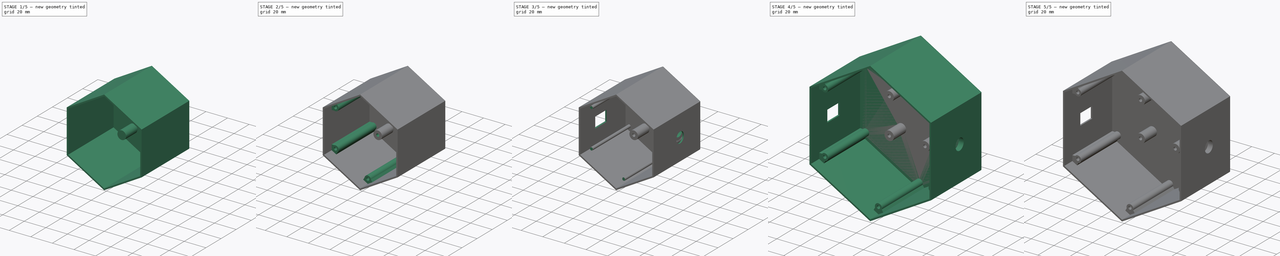
[diagram: build sequence overview — one tinted view per stage of 5, left to right]
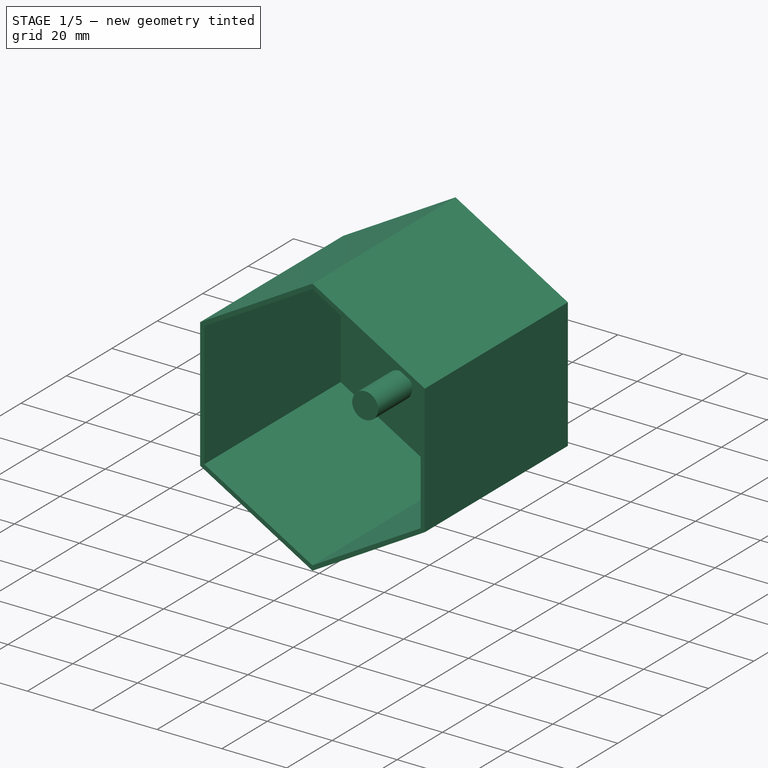
[diagram: stage 1 of 5 — iso view after this stage's code; geometry added in this stage tinted green]
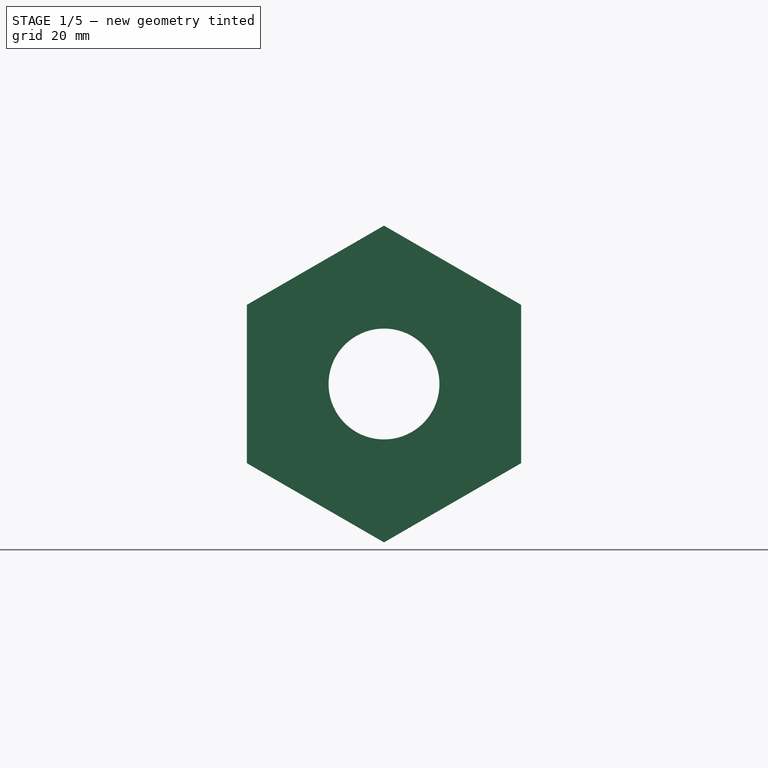
[diagram: stage 1 of 5 — front view after this stage's code; geometry added in this stage tinted green]
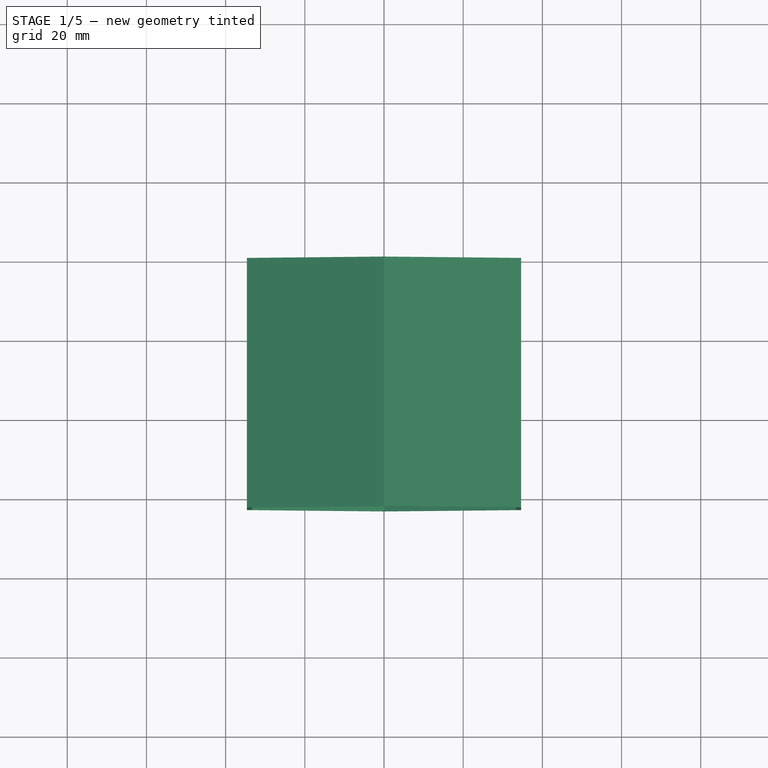
[diagram: stage 1 of 5 — top view after this stage's code; geometry added in this stage tinted green]
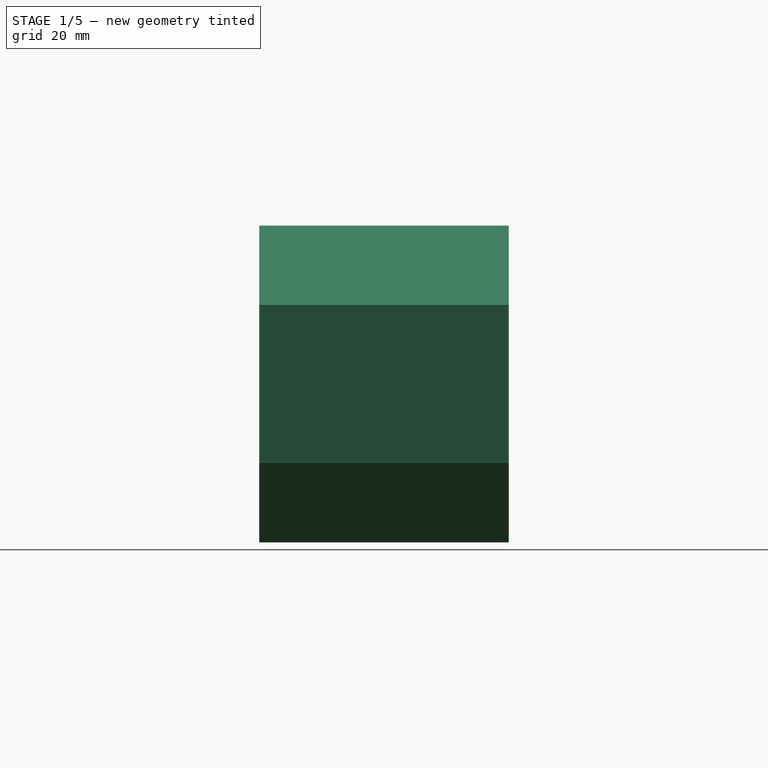
[diagram: stage 1 of 5 — right view after this stage's code; geometry added in this stage tinted green]
FCSTD DOCUMENT  (FreeCAD 0.19R)
Label: declic-joystick-box-v001
License: All rights reserved
LicenseURL: http://en.wikipedia.org/wiki/All_rights_reserved
objects: Sketcher::SketchObject×13, PartDesign::Pad×8, PartDesign::Pocket×5, PartDesign::PolarPattern×2, PartDesign::Chamfer×2, PartDesign::Body×2, App::Part×2, PartDesign::Fillet×1
note: 46 computed .brp shape members not serialized (recipe doc carries the construction recipe); baked Part::Feature solids carry a one-line shape summary decoded from their .brp

FEATURE [Sketcher::SketchObject] Sketch
  MapMode = 5
  Placement = pos=(0,0,0) rot=(1,0,0;1.5708rad)
  Support = -> [XZ_Plane001]
  sketch-geometry (7):
    g0: LineSegment StartX=0 StartY=40 StartZ=0 EndX=-34.641 EndY=20 EndZ=0
    g1: LineSegment StartX=-34.641 StartY=20 StartZ=0 EndX=-34.641 EndY=-20 EndZ=0
    g2: LineSegment StartX=-34.641 StartY=-20 StartZ=0 EndX=-7.1e-15 EndY=-40 EndZ=0
    g3: LineSegment StartX=-8.5e-15 StartY=-40 StartZ=0 EndX=34.641 EndY=-20 EndZ=0
    g4: LineSegment StartX=34.641 StartY=-20 StartZ=0 EndX=34.641 EndY=20 EndZ=0
    g5: LineSegment StartX=34.641 StartY=20 StartZ=0 EndX=0 EndY=40 EndZ=0
    g6: Circle [constr] CenterX=0 CenterY=0 CenterZ=0 NormalX=0 NormalY=0 NormalZ=1 AngleXU=0 Radius=40
  constraints (16):
    c: Coincident(g0,g1)
    c: Coincident(g1,g2)
    c: Coincident(g2,g3)
    c: Coincident(g3,g4)
    c: Coincident(g4,g5)
    c: Coincident(g5,g0)
    c: Equal(g0, g1-g5) x5
    c: PointOnObject(g0,g6)
    c: PointOnObject(g1,g6)
    c: PointOnObject(g2,g6)
    c: PointOnObject(g3,g6)
    c: PointOnObject(g4,g6)
    c: PointOnObject(g5,g6)
    c: Coincident(g6,g-1)
    c: PointOnObject(g5,g-2)
    c: Radius(g6) = 40
FEATURE [PartDesign::Pad] Pad
  Length = 3
  Length2 = 100
  Placement = pos=(0,0,0) rot=(1,0,0;1.5708rad)
  Profile = -> Sketch
  Type = 0
FEATURE [Sketcher::SketchObject] Sketch001
  MapMode = 5
  Placement = pos=(0,0,0) rot=(-1,0,0;1.5708rad)
  Support = -> [Pad]
  sketch-geometry (1):
    g0: Circle CenterX=0 CenterY=0 CenterZ=0 NormalX=0 NormalY=0 NormalZ=1 AngleXU=0 Radius=14
  constraints (2):
    c: Coincident(g0,g-1)
    c: Diameter(g0) = 28
FEATURE [PartDesign::Pocket] Pocket
  BaseFeature = -> Pad
  Length = 5
  Length2 = 100
  Placement = pos=(0,0,0) rot=(1,0,0;1.5708rad)
  Profile = -> Sketch001
  Type = 0
FEATURE [Sketcher::SketchObject] Sketch002
  ExternalGeometry = -> [Pocket]
  MapMode = 5
  Placement = pos=(0,-3,-7e-16) rot=(1,0,0;1.5708rad)
  Support = -> [Pocket]
  sketch-geometry (14):
    g0: LineSegment StartX=0 StartY=40 StartZ=0 EndX=-34.641 EndY=20 EndZ=0
    g1: LineSegment StartX=-34.641 StartY=20 StartZ=0 EndX=-34.641 EndY=-20 EndZ=0
    g2: LineSegment StartX=-34.641 StartY=-20 StartZ=0 EndX=7.1e-15 EndY=-40 EndZ=0
    g3: LineSegment StartX=5.3e-15 StartY=-40 StartZ=0 EndX=34.641 EndY=-20 EndZ=0
    g4: LineSegment StartX=34.641 StartY=-20 StartZ=0 EndX=34.641 EndY=20 EndZ=0
    g5: LineSegment StartX=34.641 StartY=20 StartZ=0 EndX=0 EndY=40 EndZ=0
    g6: Circle [constr] CenterX=0 CenterY=0 CenterZ=0 NormalX=0 NormalY=0 NormalZ=1 AngleXU=0 Radius=40
    g7: LineSegment StartX=0 StartY=38.5 StartZ=0 EndX=-33.342 EndY=19.25 EndZ=0
    g8: LineSegment StartX=-33.342 StartY=19.25 StartZ=0 EndX=-33.342 EndY=-19.25 EndZ=0
    g9: LineSegment StartX=-33.342 StartY=-19.25 StartZ=0 EndX=7.1e-15 EndY=-38.5 EndZ=0
    g10: LineSegment StartX=4.1e-15 StartY=-38.5 StartZ=0 EndX=33.342 EndY=-19.25 EndZ=0
    g11: LineSegment StartX=33.342 StartY=-19.25 StartZ=0 EndX=33.342 EndY=19.25 EndZ=0
    g12: LineSegment StartX=33.342 StartY=19.25 StartZ=0 EndX=0 EndY=38.5 EndZ=0
    g13: Circle [constr] CenterX=0 CenterY=0 CenterZ=0 NormalX=0 NormalY=0 NormalZ=1 AngleXU=0 Radius=38.5
  constraints (31):
    c: Coincident(g0,g1)
    c: Coincident(g1,g2)
    c: Coincident(g2,g3)
    c: Coincident(g3,g4)
    c: Coincident(g4,g5)
    c: Coincident(g5,g0)
    c: Equal(g0, g1-g5) x5
    c: PointOnObject(g0,g6)
    c: PointOnObject(g1,g6)
    c: PointOnObject(g2,g6)
    c: PointOnObject(g3,g6)
    c: PointOnObject(g4,g6)
    c: PointOnObject(g5,g6)
    c: Coincident(g6,g-1)
    c: Coincident(g5,g-3)
    c: Coincident(g7,g8)
    c: Coincident(g8,g9)
    c: Coincident(g9,g10)
    c: Coincident(g10,g11)
    c: Coincident(g11,g12)
    c: Coincident(g12,g7)
    c: Equal(g7, g8-g12) x5
    c: PointOnObject(g7,g13)
    c: PointOnObject(g8,g13)
    c: PointOnObject(g9,g13)
    c: PointOnObject(g10,g13)
    c: PointOnObject(g11,g13)
    c: PointOnObject(g12,g13)
    c: Coincident(g13,g-1)
    c: PointOnObject(g12,g-2)
    c: DistanceY(g7,g0) = 1.5
FEATURE [PartDesign::Pad] Pad001
  BaseFeature = -> Pocket
  Length = 60
  Length2 = 100
  Placement = pos=(0,0,0) rot=(1,0,0;1.5708rad)
  Profile = -> Sketch002
  Type = 0
FEATURE [Sketcher::SketchObject] Sketch003
  MapMode = 5
  Placement = pos=(0,-3,-7e-16) rot=(1,0,0;1.5708rad)
  Support = -> [Pad001]
  sketch-geometry (8):
    g0: LineSegment [constr] StartX=-15.25 StartY=15.25 StartZ=0 EndX=15.25 EndY=15.25 EndZ=0
    g1: LineSegment [constr] StartX=15.25 StartY=15.25 StartZ=0 EndX=15.25 EndY=-15.25 EndZ=0
    g2: LineSegment [constr] StartX=15.25 StartY=-15.25 StartZ=0 EndX=-15.25 EndY=-15.25 EndZ=0
    g3: LineSegment [constr] StartX=-15.25 StartY=-15.25 StartZ=0 EndX=-15.25 EndY=15.25 EndZ=0
    g4: Circle CenterX=-15.25 CenterY=15.25 CenterZ=0 NormalX=0 NormalY=0 NormalZ=1 AngleXU=0 Radius=4
    g5: Circle CenterX=15.25 CenterY=15.25 CenterZ=0 NormalX=0 NormalY=0 NormalZ=1 AngleXU=0 Radius=4
    g6: Circle CenterX=15.25 CenterY=-15.25 CenterZ=0 NormalX=0 NormalY=0 NormalZ=1 AngleXU=0 Radius=4
    g7: Circle CenterX=-15.25 CenterY=-15.25 CenterZ=0 NormalX=0 NormalY=0 NormalZ=1 AngleXU=0 Radius=4
  constraints (19):
    c: Coincident(g0,g1)
    c: Coincident(g1,g2)
    c: Coincident(g2,g3)
    c: Coincident(g3,g0)
    c: Horizontal(g0)
    c: Horizontal(g2)
    c: Vertical(g1)
    c: Vertical(g3)
    c: Symmetric(g0,g1,g-1)
    c: Distance(g0) = 30.5
    c: Distance(g1) = 30.5
    c: Coincident(g4,g0)
    c: Coincident(g5,g0)
    c: Coincident(g6,g1)
    c: Coincident(g7,g2)
    c: Equal(g4,g5)
    c: Equal(g4,g7)
    c: Equal(g4,g6)
    c: Radius(g4) = 4
FEATURE [PartDesign::Pad] Pad002
  BaseFeature = -> Pad001
  Length = 15
  Length2 = 100
  Placement = pos=(0,0,0) rot=(1,0,0;1.5708rad)
  Profile = -> Sketch003
  Type = 0
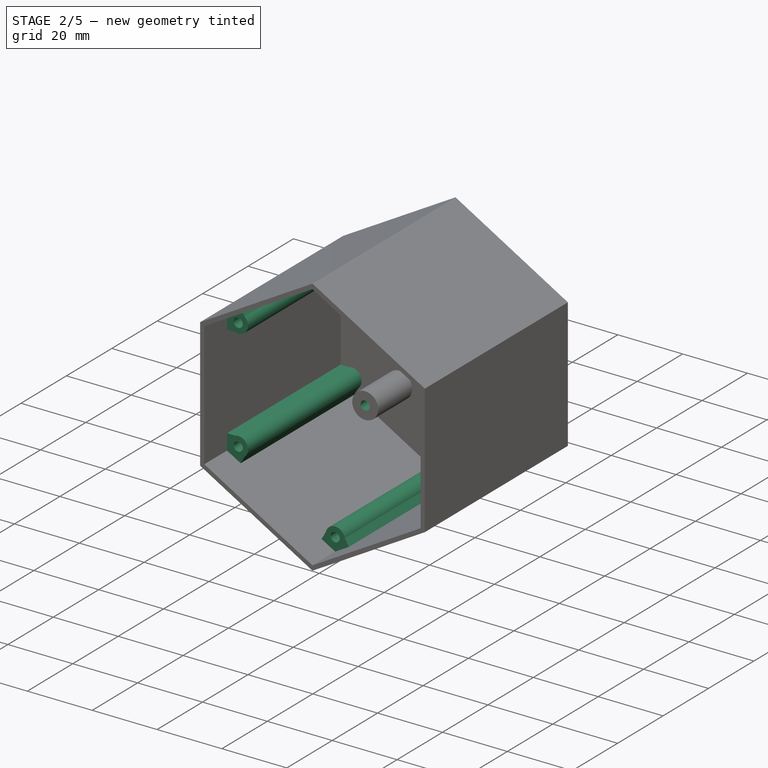
[diagram: stage 2 of 5 — iso view after this stage's code; geometry added in this stage tinted green]
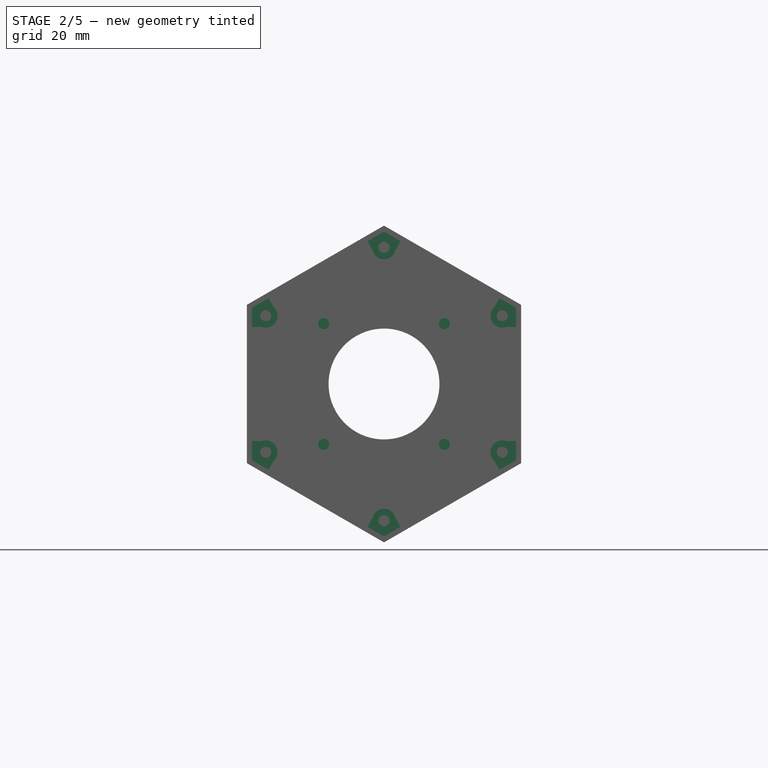
[diagram: stage 2 of 5 — front view after this stage's code; geometry added in this stage tinted green]
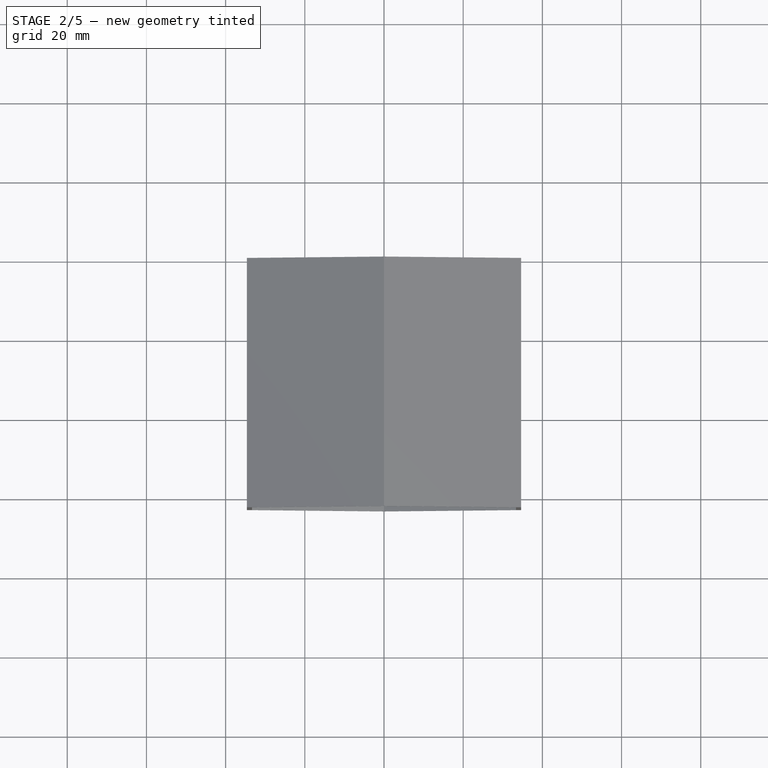
[diagram: stage 2 of 5 — top view after this stage's code; geometry added in this stage tinted green]
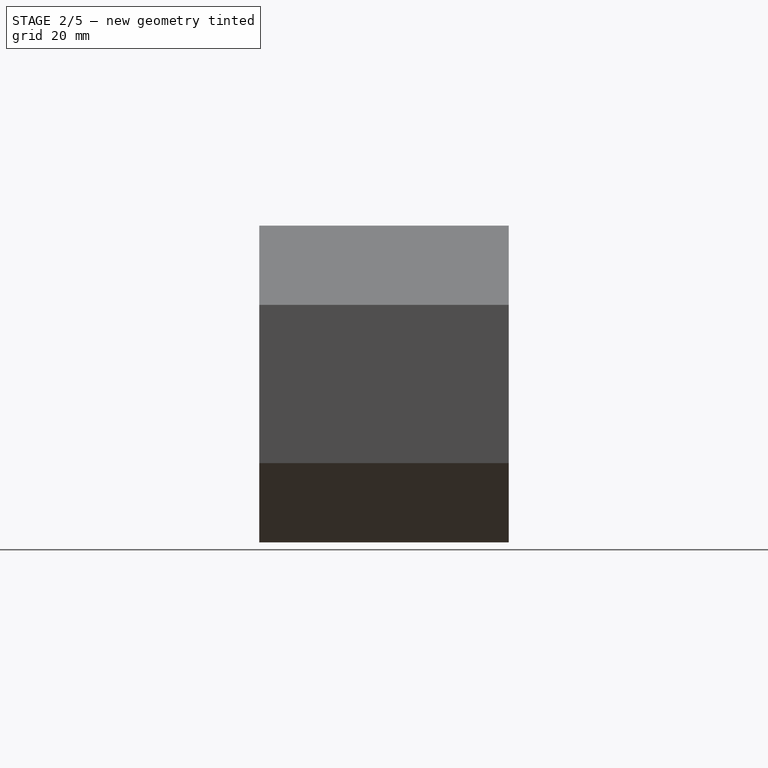
[diagram: stage 2 of 5 — right view after this stage's code; geometry added in this stage tinted green]
FEATURE [Sketcher::SketchObject] Sketch004
  ExternalGeometry = -> [Pad002]
  MapMode = 5
  Placement = pos=(-7e-16,-18,-3.5e-15) rot=(1,0,0;1.5708rad)
  Support = -> [Pad002]
  sketch-geometry (4):
    g0: Circle CenterX=-15.25 CenterY=-15.25 CenterZ=0 NormalX=0 NormalY=0 NormalZ=1 AngleXU=0 Radius=1.4
    g1: Circle CenterX=15.25 CenterY=-15.25 CenterZ=0 NormalX=0 NormalY=0 NormalZ=1 AngleXU=0 Radius=1.4
    g2: Circle CenterX=-15.25 CenterY=15.25 CenterZ=0 NormalX=0 NormalY=0 NormalZ=1 AngleXU=0 Radius=1.4
    g3: Circle CenterX=15.25 CenterY=15.25 CenterZ=0 NormalX=0 NormalY=0 NormalZ=1 AngleXU=0 Radius=1.4
  constraints (8):
    c: Coincident(g0,g-3)
    c: Coincident(g1,g-4)
    c: Coincident(g2,g-5)
    c: Coincident(g3,g-6)
    c: Equal(g0,g1)
    c: Equal(g0,g2)
    c: Equal(g0,g3)
    c: Radius(g0) = 1.4
FEATURE [PartDesign::Pocket] Pocket001
  BaseFeature = -> Pad002
  Length = 6
  Length2 = 100
  Placement = pos=(0,0,0) rot=(1,0,0;1.5708rad)
  Profile = -> Sketch004
  Type = 0
FEATURE [Sketcher::SketchObject] Sketch005
  ExternalGeometry = -> [Pocket001]
  MapMode = 5
  Placement = pos=(0,-3,-7e-16) rot=(1,0,0;1.5708rad)
  Support = -> [Pocket001]
  sketch-geometry (7):
    g0: Circle CenterX=0 CenterY=34.5 CenterZ=0 NormalX=0 NormalY=0 NormalZ=1 AngleXU=0 Radius=1.4
    g1: Circle [constr] CenterX=0 CenterY=34.5 CenterZ=0 NormalX=0 NormalY=0 NormalZ=1 AngleXU=0 Radius=3
    g2: LineSegment StartX=-4.19231 StartY=36.0796 StartZ=0 EndX=-2.94231 EndY=33.9145 EndZ=0
    g3: LineSegment StartX=4.19231 StartY=36.0796 StartZ=0 EndX=2.94231 EndY=33.9145 EndZ=0
    g4: LineSegment StartX=-4.19231 StartY=36.0796 StartZ=0 EndX=0 EndY=38.5 EndZ=0
    g5: LineSegment StartX=0 StartY=38.5 StartZ=0 EndX=4.19231 EndY=36.0796 EndZ=0
    g6: ArcOfCircle CenterX=0 CenterY=34.5 CenterZ=0 NormalX=0 NormalY=0 NormalZ=1 AngleXU=0 Radius=3 StartAngle=3.33802 EndAngle=6.08676
  constraints (19):
    c: PointOnObject(g0,g-2)
    c: Radius(g0) = 1.4
    c: Coincident(g1,g0)
    c: Distance(g0,g-4) = 4
    c: PointOnObject(g2,g-3)
    c: PointOnObject(g2,g1)
    c: PointOnObject(g3,g-4)
    c: Perpendicular(g-3,g2)
    c: Perpendicular(g-4,g3)
    c: Coincident(g2,g4)
    c: Coincident(g4,g-4)
    c: Coincident(g4,g5)
    c: Coincident(g5,g3)
    c: Equal(g2,g3)
    c: Distance(g3) = 2.5
    c: Coincident(g6,g0)
    c: Coincident(g6,g2)
    c: Coincident(g6,g3)
    c: Radius(g1) = 3
FEATURE [PartDesign::Pad] Pad003
  BaseFeature = -> Pocket001
  Length = 50
  Length2 = 100
  Placement = pos=(0,0,0) rot=(1,0,0;1.5708rad)
  Profile = -> Sketch005
  Type = 0
FEATURE [PartDesign::PolarPattern] PolarPattern
  Angle = 360
  Axis = -> Y_Axis001
  BaseFeature = -> Pad003
  Occurrences = 6
  Originals = -> [Pad003]
  Placement = pos=(0,0,0) rot=(1,0,0;1.5708rad)
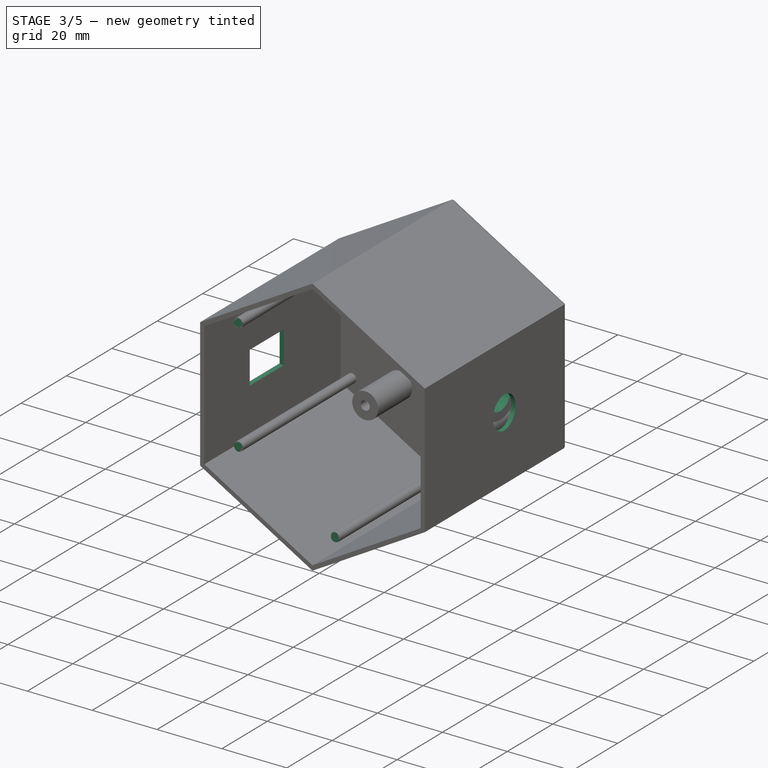
[diagram: stage 3 of 5 — iso view after this stage's code; geometry added in this stage tinted green]
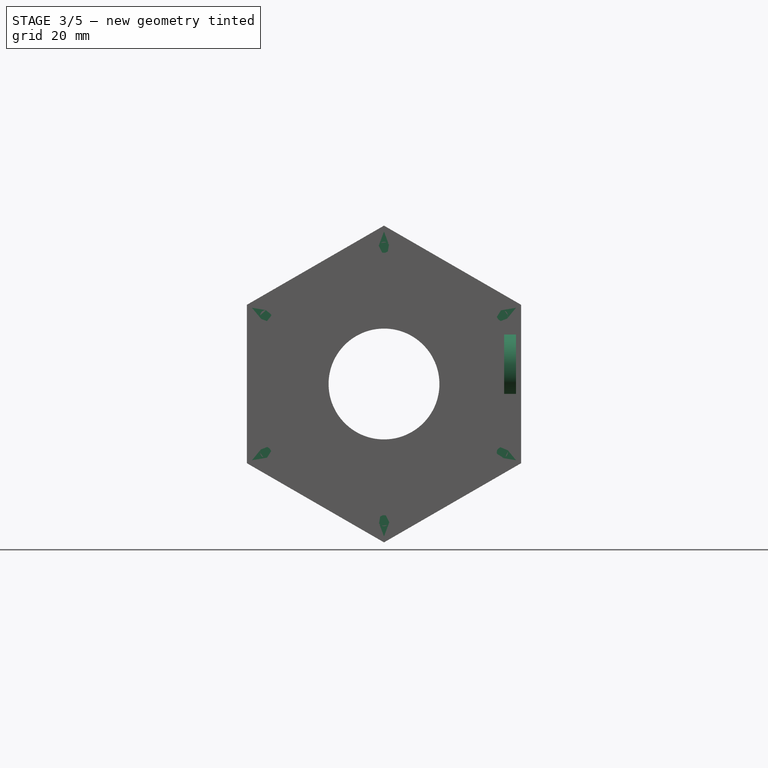
[diagram: stage 3 of 5 — front view after this stage's code; geometry added in this stage tinted green]
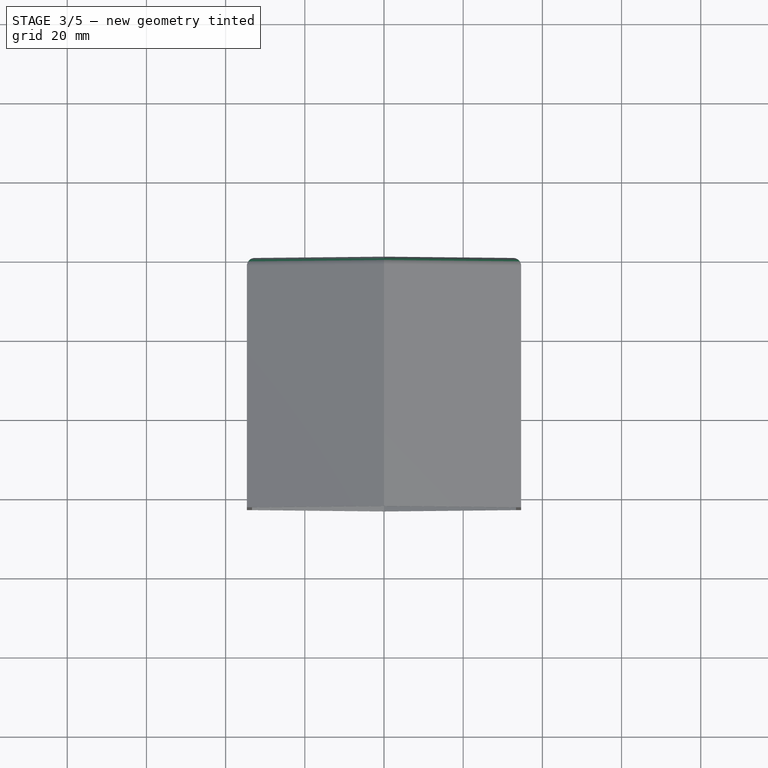
[diagram: stage 3 of 5 — top view after this stage's code; geometry added in this stage tinted green]
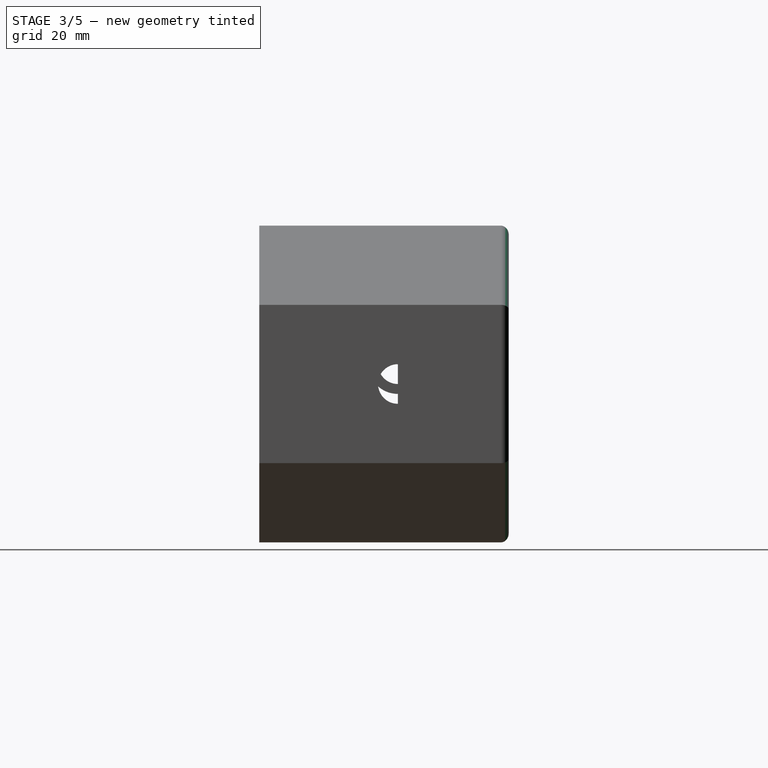
[diagram: stage 3 of 5 — right view after this stage's code; geometry added in this stage tinted green]
FEATURE [PartDesign::Fillet] Fillet
  Base = -> PolarPattern [Face4]
  BaseFeature = -> PolarPattern
  Placement = pos=(0,0,0) rot=(1,0,0;1.5708rad)
  Radius = 2
FEATURE [PartDesign::Body] Body001  label="declic-joystick-bottom-v001_body"
  Group = -> [Sketch006,Pad004,Sketch007,Pocket002,PolarPattern001,Chamfer,Sketch008,Pad005,Sketch009,Pad006]
  Origin = -> Origin003
  Tip = -> Pad006
FEATURE [App::Part] Part001  label="declic-joystick-bottom-v001"
  Group = -> [Body001]
  Origin = -> Origin002
  Placement = pos=(0,-120.2,0) rot=(0,0,1;0rad)
FEATURE [Sketcher::SketchObject] Sketch010
  ExternalGeometry = -> [Fillet]
  MapMode = 5
  Placement = pos=(-34.641,0,-6.2e-15) rot=(0.707107,0,-0.707107;3.14159rad)
  Support = -> [Fillet]
  sketch-geometry (4):
    g0: LineSegment StartX=-5 StartY=43 StartZ=0 EndX=5 EndY=43 EndZ=0
    g1: LineSegment StartX=5 StartY=28 StartZ=0 EndX=-5 EndY=28 EndZ=0
    g2: LineSegment StartX=-5 StartY=28 StartZ=0 EndX=-5 EndY=43 EndZ=0
    g3: LineSegment StartX=5 StartY=28 StartZ=0 EndX=5 EndY=43 EndZ=0
  constraints (11):
    c: Coincident(g1,g2)
    c: Coincident(g2,g0)
    c: Horizontal(g1)
    c: Vertical(g2)
    c: Symmetric(g0,g0,g-2)
    c: Distance(g1) = 10
    c: Coincident(g3,g1)
    c: Coincident(g3,g0)
    c: Vertical(g3)
    c: Distance(g0,g-3) = 20
    c: Distance(g2) = 15
FEATURE [PartDesign::Pocket] Pocket003
  BaseFeature = -> Fillet
  Length = 5
  Length2 = 100
  Placement = pos=(0,0,0) rot=(1,0,0;1.5708rad)
  Profile = -> Sketch010
  Type = 0
FEATURE [Sketcher::SketchObject] Sketch011
  ExternalGeometry = -> [Pocket003]
  MapMode = 5
  Placement = pos=(34.641,0,0) rot=(0.707107,0,0.707107;3.14159rad)
  Support = -> [Pocket003]
  sketch-geometry (1):
    g0: Circle CenterX=0 CenterY=28 CenterZ=0 NormalX=0 NormalY=0 NormalZ=1 AngleXU=0 Radius=5
  constraints (3):
    c: PointOnObject(g0,g-2)
    c: Diameter(g0) = 10
    c: Distance(g0,g-3) = 35
FEATURE [PartDesign::Pocket] Pocket004
  BaseFeature = -> Pocket003
  Length = 5
  Length2 = 100
  Placement = pos=(0,0,0) rot=(1,0,0;1.5708rad)
  Profile = -> Sketch011
  Type = 0
FEATURE [Sketcher::SketchObject] Sketch012
  ExternalGeometry = -> [Pocket004]
  MapMode = 5
  Placement = pos=(33.342,0,6.2e-15) rot=(0.707107,0,-0.707107;3.14159rad)
  Support = -> [Pocket004]
  sketch-geometry (2):
    g0: Circle CenterX=-5 CenterY=28 CenterZ=0 NormalX=0 NormalY=0 NormalZ=1 AngleXU=0 Radius=5
    g1: Circle CenterX=-5 CenterY=28 CenterZ=0 NormalX=0 NormalY=0 NormalZ=1 AngleXU=0 Radius=7.5
  constraints (4):
    c: Coincident(g0,g-3)
    c: Tangent(g0,g-3)
    c: Coincident(g1,g0)
    c: Diameter(g1) = 15
FEATURE [PartDesign::Pad] Pad007
  BaseFeature = -> Pocket004
  Length = 3
  Length2 = 100
  Placement = pos=(0,0,0) rot=(1,0,0;1.5708rad)
  Profile = -> Sketch012
  Type = 0
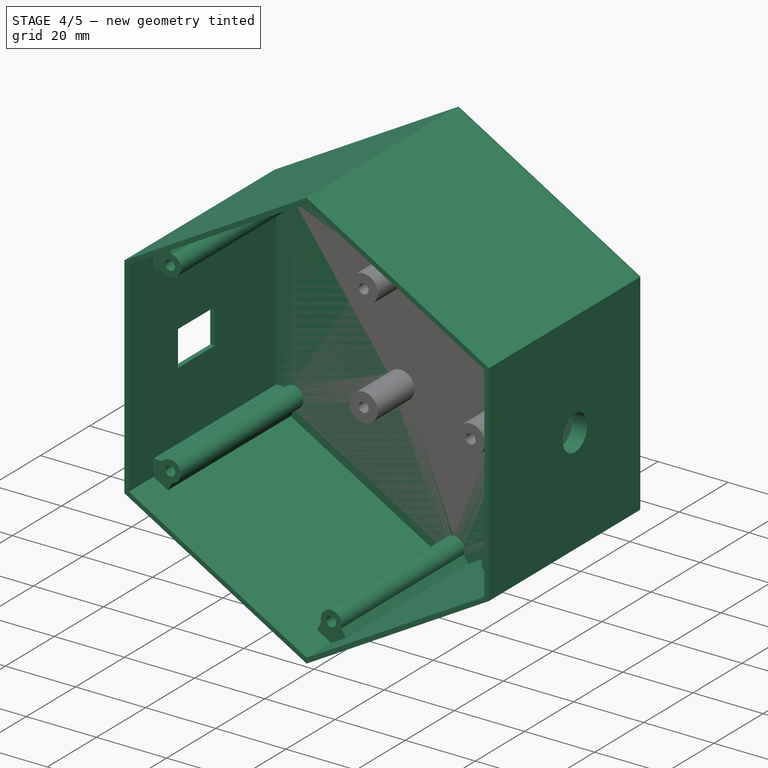
[diagram: stage 4 of 5 — iso view after this stage's code; geometry added in this stage tinted green]
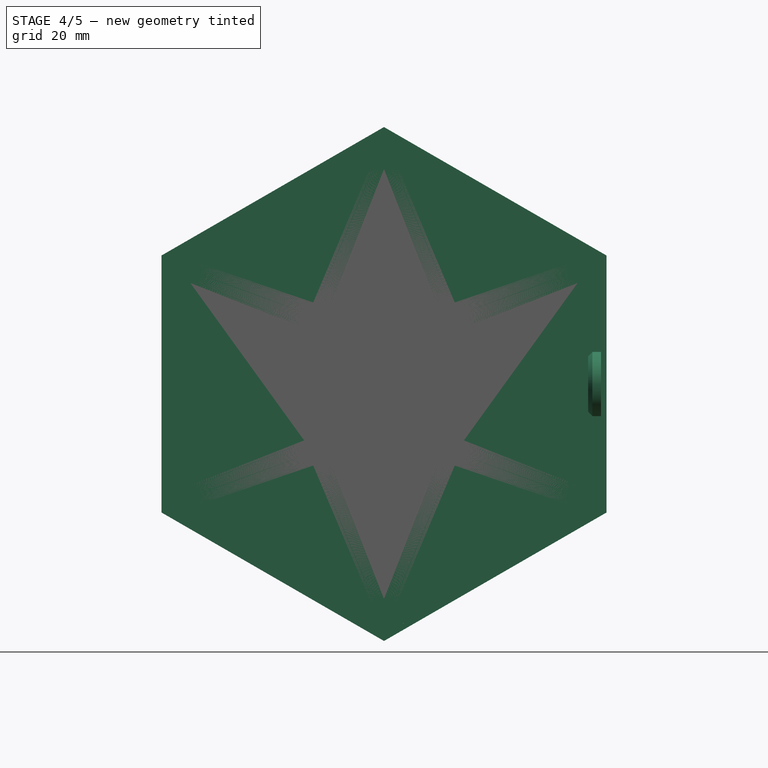
[diagram: stage 4 of 5 — front view after this stage's code; geometry added in this stage tinted green]
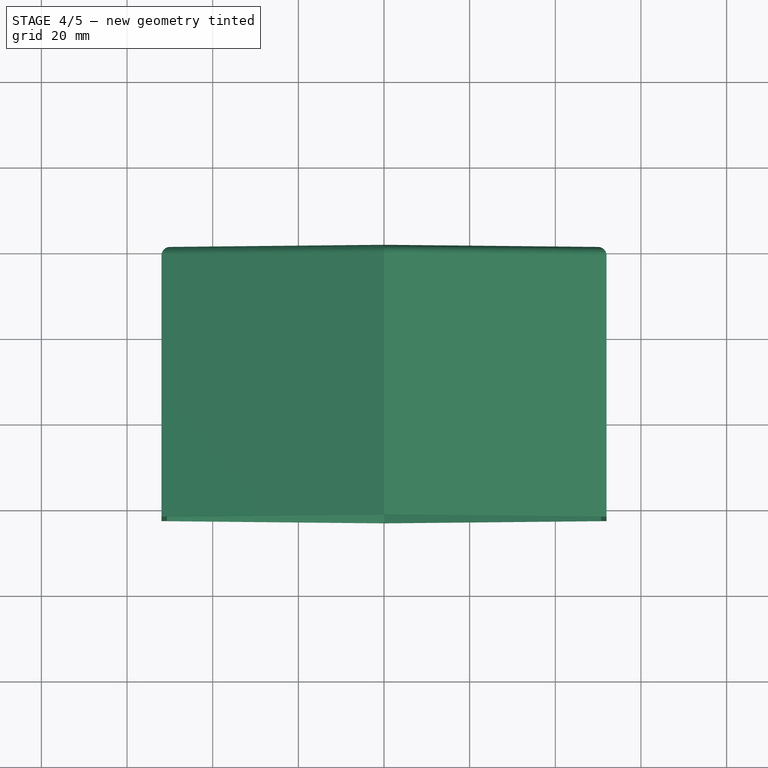
[diagram: stage 4 of 5 — top view after this stage's code; geometry added in this stage tinted green]
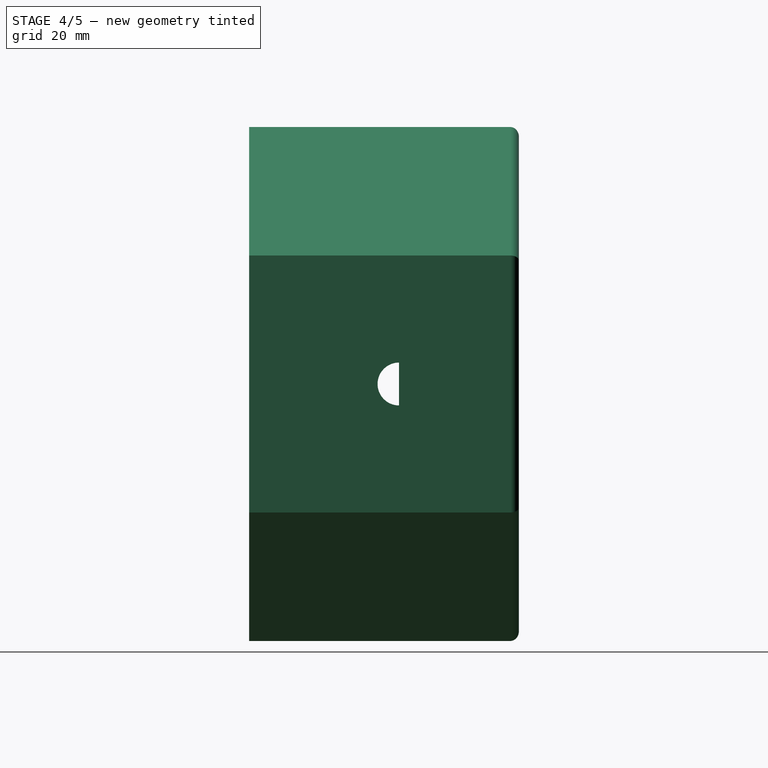
[diagram: stage 4 of 5 — right view after this stage's code; geometry added in this stage tinted green]
FEATURE [Sketcher::SketchObject] Sketch006
  MapMode = 5
  Placement = pos=(0,0,0) rot=(1,0,0;1.5708rad)
  Support = -> [XZ_Plane003]
  sketch-geometry (7):
    g0: LineSegment StartX=0 StartY=56 StartZ=0 EndX=-48.4974 EndY=28 EndZ=0
    g1: LineSegment StartX=-48.4974 StartY=28 StartZ=0 EndX=-48.4974 EndY=-28 EndZ=0
    g2: LineSegment StartX=-48.4974 StartY=-28 StartZ=0 EndX=0 EndY=-56 EndZ=0
    g3: LineSegment StartX=2.1e-15 StartY=-56 StartZ=0 EndX=48.4974 EndY=-28 EndZ=0
    g4: LineSegment StartX=48.4974 StartY=-28 StartZ=0 EndX=48.4974 EndY=28 EndZ=0
    g5: LineSegment StartX=48.4974 StartY=28 StartZ=0 EndX=0 EndY=56 EndZ=0
    g6: Circle [constr] CenterX=0 CenterY=0 CenterZ=0 NormalX=0 NormalY=0 NormalZ=1 AngleXU=0 Radius=56
  constraints (16):
    c: Coincident(g0,g1)
    c: Coincident(g1,g2)
    c: Coincident(g2,g3)
    c: Coincident(g3,g4)
    c: Coincident(g4,g5)
    c: Coincident(g5,g0)
    c: Equal(g0, g1-g5) x5
    c: PointOnObject(g0,g6)
    c: PointOnObject(g1,g6)
    c: PointOnObject(g2,g6)
    c: PointOnObject(g3,g6)
    c: PointOnObject(g4,g6)
    c: PointOnObject(g5,g6)
    c: Coincident(g6,g-1)
    c: PointOnObject(g5,g-2)
    c: Radius(g6) = 56
FEATURE [PartDesign::Pad] Pad004
  Length = 3
  Length2 = 100
  Placement = pos=(0,0,0) rot=(1,0,0;1.5708rad)
  Profile = -> Sketch006
  Type = 0
FEATURE [Sketcher::SketchObject] Sketch007
  MapMode = 5
  Placement = pos=(0,-3,1.3e-15) rot=(1,0,0;1.5708rad)
  Support = -> [Pad004]
  sketch-geometry (1):
    g0: Circle CenterX=0 CenterY=53 CenterZ=0 NormalX=0 NormalY=0 NormalZ=1 AngleXU=0 Radius=1.6
  constraints (3):
    c: PointOnObject(g0,g-2)
    c: DistanceY(g-1,g0) = 53
    c: Radius(g0) = 1.6
FEATURE [PartDesign::Pocket] Pocket002
  BaseFeature = -> Pad004
  Length = 5
  Length2 = 100
  Placement = pos=(0,0,0) rot=(1,0,0;1.5708rad)
  Profile = -> Sketch007
  Type = 0
FEATURE [PartDesign::Chamfer] Chamfer001
  Base = -> Pad007 [Edge146]
  BaseFeature = -> Pad007
  Placement = pos=(0,0,0) rot=(1,0,0;1.5708rad)
  Size = 1
FEATURE [PartDesign::Body] Body  label="declic-joystick-box-v001_body"
  Group = -> [Sketch,Pad,Sketch001,Pocket,Sketch002,Pad001,Sketch003,Pad002,Sketch004,Pocket001,Sketch005,Pad003,PolarPattern,Fillet,Sketch010,Pocket003,Sketch011,Pocket004,Sketch012,Pad007,Chamfer001]
  Origin = -> Origin001
  Tip = -> Chamfer001
FEATURE [App::Part] Part  label="declic-joystick-box-v001"
  Group = -> [Body]
  Origin = -> Origin
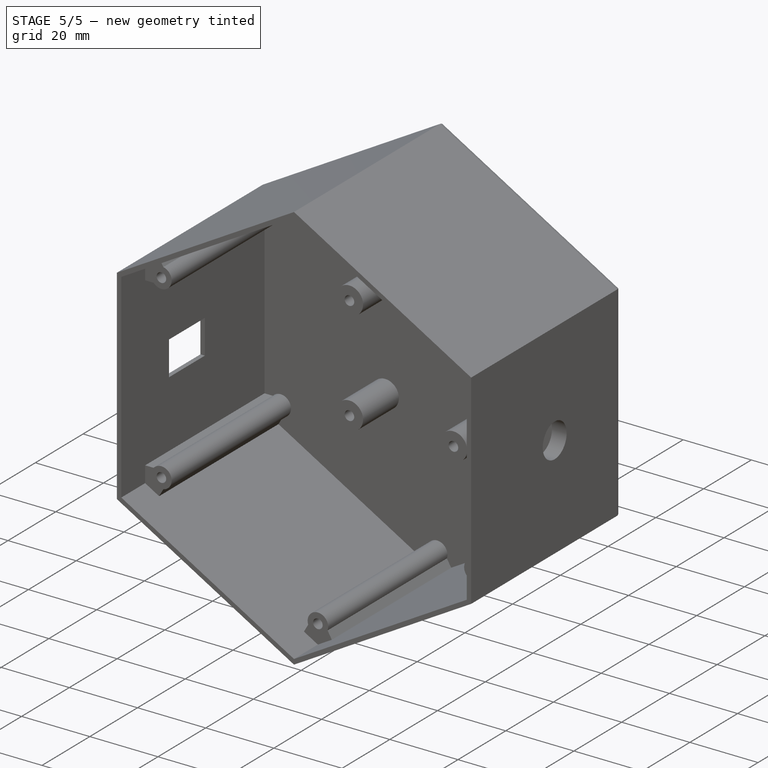
[diagram: stage 5 of 5 — iso view after this stage's code; geometry added in this stage tinted green]
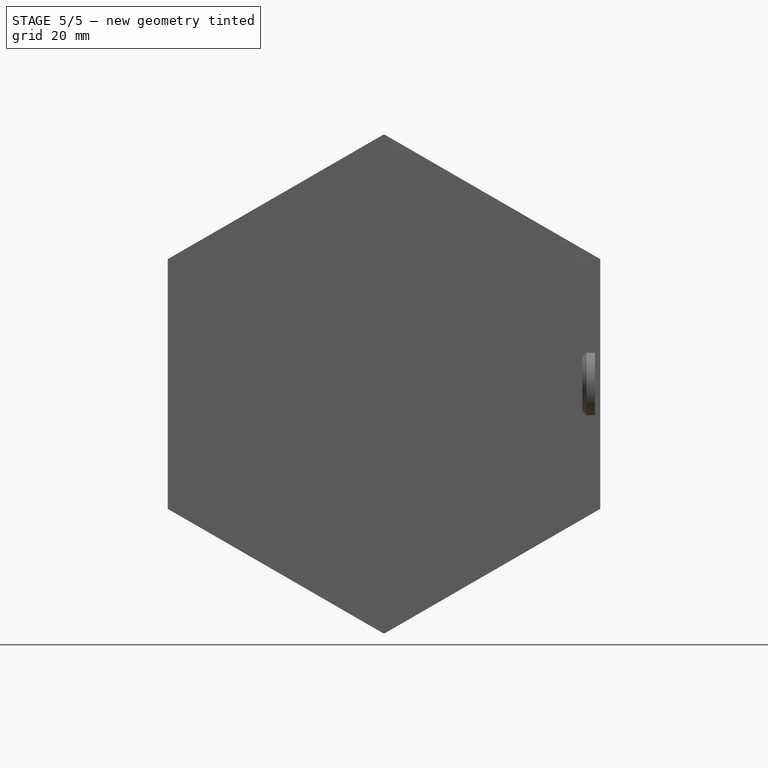
[diagram: stage 5 of 5 — front view after this stage's code; geometry added in this stage tinted green]
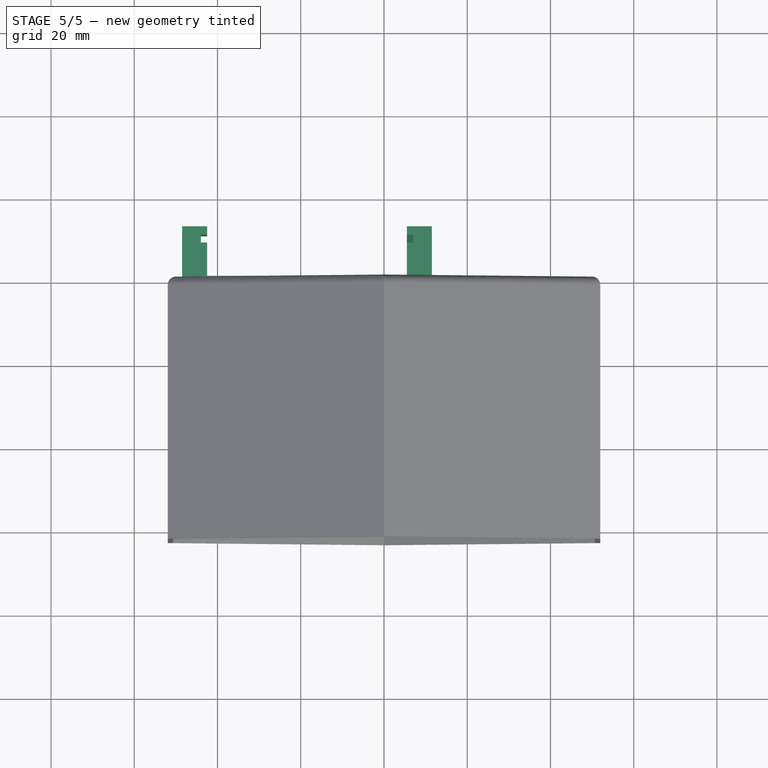
[diagram: stage 5 of 5 — top view after this stage's code; geometry added in this stage tinted green]
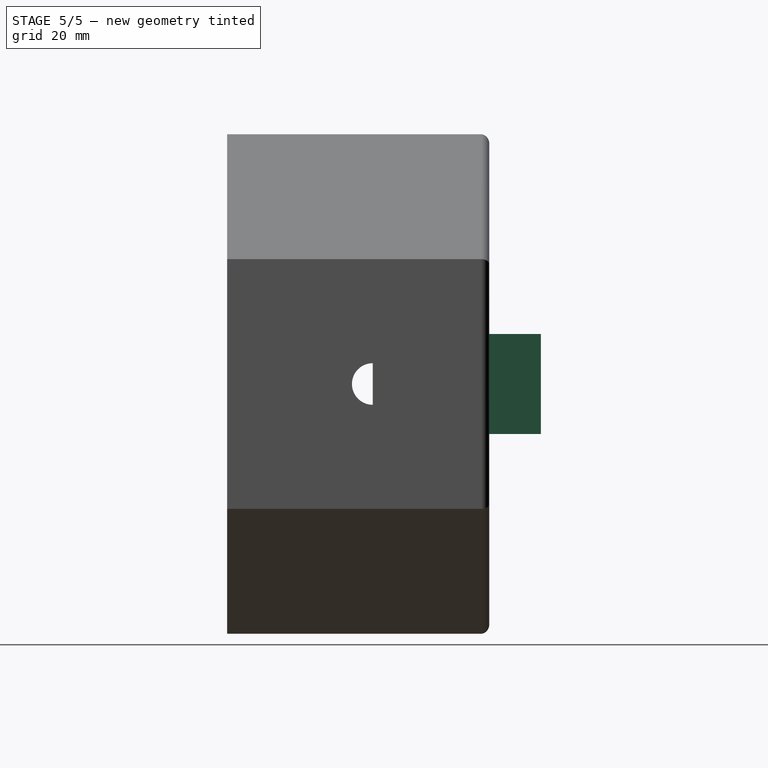
[diagram: stage 5 of 5 — right view after this stage's code; geometry added in this stage tinted green]
FEATURE [PartDesign::PolarPattern] PolarPattern001
  Angle = 360
  Axis = -> Y_Axis003
  BaseFeature = -> Pocket002
  Occurrences = 6
  Originals = -> [Pocket002]
  Placement = pos=(0,0,0) rot=(1,0,0;1.5708rad)
FEATURE [PartDesign::Chamfer] Chamfer
  Base = -> PolarPattern001 [Edge28,Edge24,Edge27,Edge25,Edge26,Edge23]
  BaseFeature = -> PolarPattern001
  Placement = pos=(0,0,0) rot=(1,0,0;1.5708rad)
  Size = 0.5
FEATURE [Sketcher::SketchObject] Sketch008
  ExternalGeometry = -> [Chamfer]
  MapMode = 5
  Support = -> [XY_Plane003]
  sketch-geometry (16):
    g0: LineSegment StartX=-48.4974 StartY=3.11e-14 StartZ=0 EndX=-48.4974 EndY=12.4 EndZ=0
    g1: LineSegment StartX=-48.4974 StartY=12.4 StartZ=0 EndX=-42.4974 EndY=12.4 EndZ=0
    g2: LineSegment StartX=-42.4974 StartY=12.4 StartZ=0 EndX=-42.4974 EndY=10.4 EndZ=0
    g3: LineSegment StartX=-42.4974 StartY=10.4 StartZ=0 EndX=-43.9974 EndY=10.4 EndZ=0
    g4: LineSegment StartX=-43.9974 StartY=10.4 StartZ=0 EndX=-43.9974 EndY=8.5 EndZ=0
    g5: LineSegment StartX=-42.4974 StartY=8.5 StartZ=0 EndX=-42.4974 EndY=0.5 EndZ=0
    g6: LineSegment StartX=-42.4974 StartY=0.5 StartZ=0 EndX=5.50258 EndY=0.5 EndZ=0
    g7: LineSegment StartX=5.50258 StartY=0.5 StartZ=0 EndX=5.50258 EndY=8.5 EndZ=0
    g8: LineSegment StartX=7.00258 StartY=8.5 StartZ=0 EndX=7.00258 EndY=10.4 EndZ=0
    g9: LineSegment StartX=7.00258 StartY=10.4 StartZ=0 EndX=5.50258 EndY=10.4 EndZ=0
    g10: LineSegment StartX=5.50258 StartY=10.4 StartZ=0 EndX=5.50258 EndY=12.4 EndZ=0
    g11: LineSegment StartX=5.50258 StartY=12.4 StartZ=0 EndX=11.5026 EndY=12.4 EndZ=0
    g12: LineSegment StartX=11.5026 StartY=12.4 StartZ=0 EndX=11.5026 EndY=0 EndZ=0
    g13: LineSegment StartX=11.5026 StartY=0 StartZ=0 EndX=-48.4974 EndY=3.11e-14 EndZ=0
    g14: LineSegment StartX=-43.9974 StartY=8.5 StartZ=0 EndX=-42.4974 EndY=8.5 EndZ=0
    g15: LineSegment StartX=5.50258 StartY=8.5 StartZ=0 EndX=7.00258 EndY=8.5 EndZ=0
  constraints (44):
    c: Coincident(g-3,g0)
    c: Vertical(g0)
    c: Coincident(g0,g1)
    c: Horizontal(g1)
    c: Coincident(g1,g2)
    c: Vertical(g2)
    c: Coincident(g2,g3)
    c: Horizontal(g3)
    c: Coincident(g3,g4)
    c: Vertical(g4)
    c: Coincident(g5,g6)
    c: Horizontal(g6)
    c: Coincident(g6,g7)
    c: Vertical(g7)
    c: Vertical(g8)
    c: Coincident(g8,g9)
    c: Horizontal(g9)
    c: Coincident(g9,g10)
    c: Coincident(g10,g11)
    c: Coincident(g11,g12)
    c: PointOnObject(g12,g-1)
    c: Vertical(g12)
    c: Coincident(g12,g13)
    c: Coincident(g13,g0)
    c: Tangent(g1,g11)
    c: Equal(g1,g11)
    c: Equal(g3,g9)
    c: Equal(g10,g2)
    c: Equal(g5,g7)
    c: Distance(g1) = 6
    c: Distance(g3) = 1.5
    c: Coincident(g14,g4)
    c: Coincident(g14,g5)
    c: Coincident(g15,g7)
    c: Coincident(g15,g8)
    c: Horizontal(g14)
    c: Horizontal(g15)
    c: Tangent(g2,g5)
    c: Tangent(g10,g7)
    c: DistanceX(g4,g8) = 51
    c: Distance(g2) = 2
    c: Distance(g5) = 8
    c: Distance(g4) = 1.9
    c: DistanceY(g0,g5) = 0.5
FEATURE [PartDesign::Pad] Pad005
  BaseFeature = -> Chamfer
  Length = 24
  Length2 = 100
  Midplane = true
  Placement = pos=(0,0,0) rot=(1,0,0;1.5708rad)
  Profile = -> Sketch008
  Type = 0
FEATURE [Sketcher::SketchObject] Sketch009
  ExternalGeometry = -> [Pad005]
  MapMode = 5
  Placement = pos=(0,8.5,-3.8e-15) rot=(-1,0,0;1.5708rad)
  Support = -> [Pad005]
  sketch-geometry (10):
    g0: LineSegment StartX=5.50258 StartY=-10.5 StartZ=0 EndX=7.00258 EndY=-12 EndZ=0
    g1: LineSegment StartX=7.00258 StartY=-12 StartZ=0 EndX=8.00258 EndY=-12 EndZ=0
    g2: LineSegment StartX=8.00258 StartY=-12 StartZ=0 EndX=8.00258 EndY=12 EndZ=0
    g3: LineSegment StartX=8.00258 StartY=12 StartZ=0 EndX=7.00258 EndY=12 EndZ=0
    g4: LineSegment StartX=7.00258 StartY=12 StartZ=0 EndX=5.50258 EndY=10.5 EndZ=0
    g5: LineSegment StartX=5.50258 StartY=10.5 StartZ=0 EndX=5.50258 EndY=10.1 EndZ=0
    g6: LineSegment StartX=5.50258 StartY=10.1 StartZ=0 EndX=7.00258 EndY=11.6 EndZ=0
    g7: LineSegment StartX=7.00258 StartY=11.6 StartZ=0 EndX=7.00258 EndY=-11.6 EndZ=0
    g8: LineSegment StartX=7.00258 StartY=-11.6 StartZ=0 EndX=5.50258 EndY=-10.1 EndZ=0
    g9: LineSegment StartX=5.50258 StartY=-10.1 StartZ=0 EndX=5.50258 EndY=-10.5 EndZ=0
  constraints (28):
    c: PointOnObject(g0,g-4)
    c: Coincident(g0,g-3)
    c: Coincident(g0,g1)
    c: Coincident(g1,g2)
    c: Vertical(g2)
    c: Coincident(g2,g3)
    c: Coincident(g3,g-3)
    c: Coincident(g3,g4)
    c: Coincident(g4,g5)
    c: PointOnObject(g5,g-4)
    c: Coincident(g5,g6)
    c: PointOnObject(g6,g-3)
    c: Coincident(g6,g7)
    c: PointOnObject(g7,g-3)
    c: Coincident(g7,g8)
    c: PointOnObject(g8,g-4)
    c: Coincident(g8,g9)
    c: Coincident(g9,g0)
    c: PointOnObject(g4,g-4)
    c: Angle(g6,g7) = 0.785398
    c: Parallel(g6,g4)
    c: Horizontal(g1)
    c: Horizontal(g3)
    c: Distance(g3) = 1
    c: Angle(g7,g8) = 0.785398
    c: Parallel(g8,g0)
    c: Distance(g9) = 0.4
    c: Distance(g5) = 0.4
FEATURE [PartDesign::Pad] Pad006
  BaseFeature = -> Pad005
  Length = 2
  Length2 = 100
  Placement = pos=(0,0,0) rot=(1,0,0;1.5708rad)
  Profile = -> Sketch009
  Type = 3
  UpToFace = -> Pad005 [Face35]
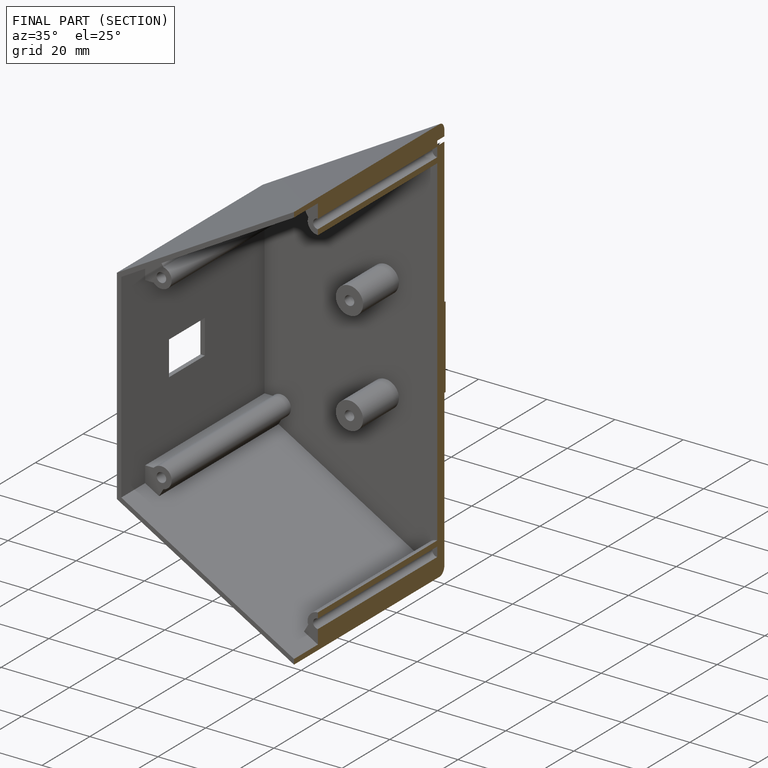
[diagram: finished part — half-section view (interior)]
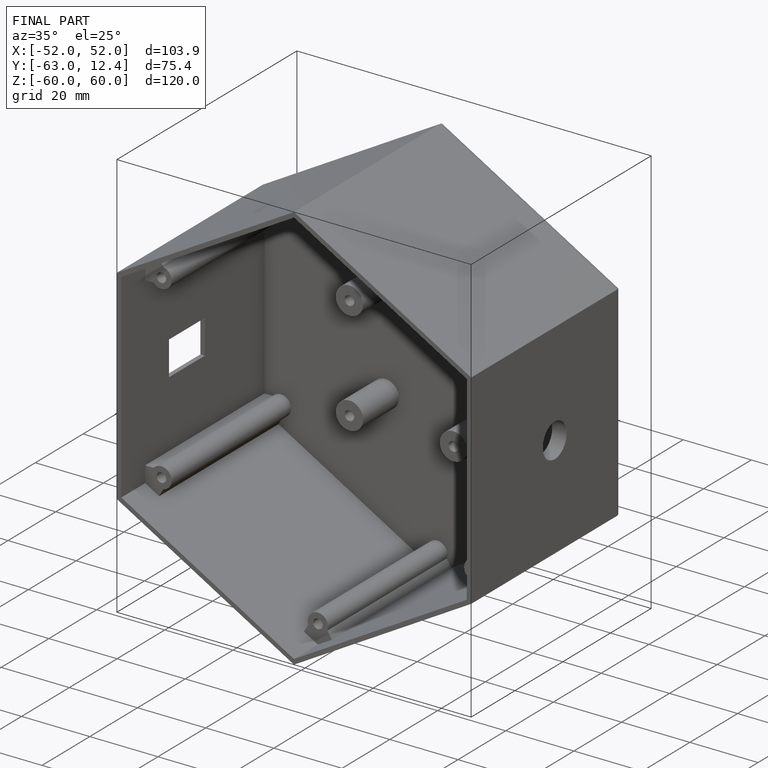
[diagram: finished part — iso view with bounding-box wireframe]
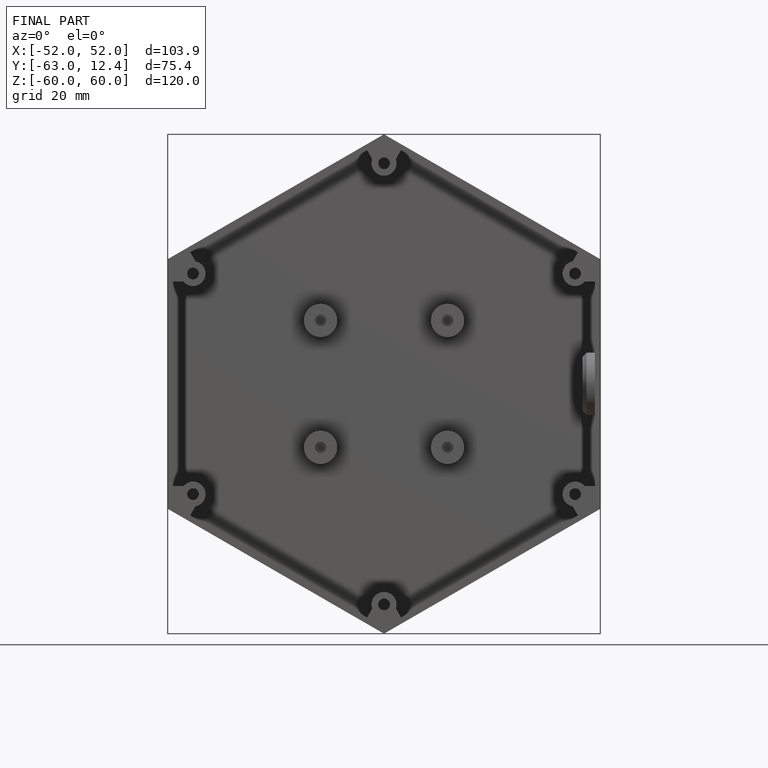
[diagram: finished part — front view with bounding-box wireframe]
